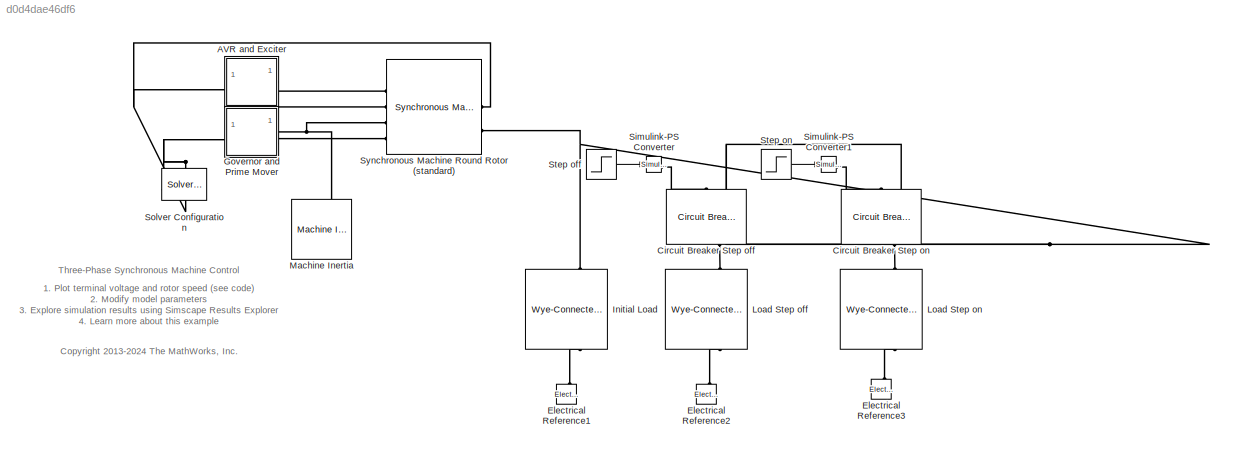
MODEL slx_d0d4dae46df6
KIND model
CONFIG AbsTol = auto
CONFIG EnableMultiTasking = on
CONFIG FixedStep = auto
CONFIG MaxStep = 1e-3
CONFIG MinStep = auto
CONFIG RelTol = 1e-3
CONFIG SampleTimeConstraint = Unconstrained
CONFIG SolverName = ode23t
CONFIG StartTime = 0.0
CONFIG StopFcn = ee_addSimlogTimeStamp(bdroot)
CONFIG StopTime = 15
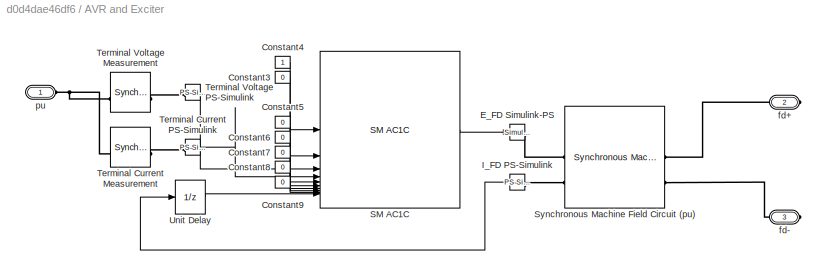
BLOCK [SubSystem] AVR and Exciter
  NameLocation = top
BLOCK [Constant] AVR and Exciter/Constant3
  Value = 0
BLOCK [Constant] AVR and Exciter/Constant4
BLOCK [Constant] AVR and Exciter/Constant5
  Value = 0
BLOCK [Constant] AVR and Exciter/Constant6
  Value = 0
BLOCK [Constant] AVR and Exciter/Constant7
  Value = 0
BLOCK [Constant] AVR and Exciter/Constant8
  Value = 0
BLOCK [Constant] AVR and Exciter/Constant9
  Value = 0
BLOCK [Reference] AVR and Exciter/E_FD Simulink-PS   REF=nesl_utility/Simulink-PS
Converter
  SourceBlock = nesl_utility/Simulink-PS\nConverter
  SourceType = Simulink-PS\nConverter
BLOCK [Reference] AVR and Exciter/I_FD PS-Simulink  REF=nesl_utility/PS-Simulink
Converter
  SourceBlock = nesl_utility/PS-Simulink\nConverter
  SourceType = PS-Simulink\nConverter
BLOCK [Reference] AVR and Exciter/SM AC1C  REF=eeSmAC1C/SM AC1C
  SourceBlock = eeSmAC1C/SM AC1C
  SourceType = SM AC1C
BLOCK [Reference] AVR and Exciter/Synchronous Machine Field Circuit (pu)  REF=ee_lib/Electromechanical/Synchronous/Synchronous Machine
Field Circuit
  SourceBlock = ee_lib/Electromechanical/Synchronous/Synchronous Machine\nField Circuit
  SourceType = Synchronous Machine\nField Circuit
BLOCK [Reference] AVR and Exciter/Terminal Current Measurement  REF=ee_lib/Electromechanical/Synchronous/Synchronous Machine
Measurement
  SourceBlock = ee_lib/Electromechanical/Synchronous/Synchronous Machine\nMeasurement
  SourceType = Synchronous Machine\nMeasurement
BLOCK [Reference] AVR and Exciter/Terminal Current PS-Simulink  REF=nesl_utility/PS-Simulink
Converter
  SourceBlock = nesl_utility/PS-Simulink\nConverter
  SourceType = PS-Simulink\nConverter
BLOCK [Reference] AVR and Exciter/Terminal Voltage Measurement  REF=ee_lib/Electromechanical/Synchronous/Synchronous Machine
Measurement
  SourceBlock = ee_lib/Electromechanical/Synchronous/Synchronous Machine\nMeasurement
  SourceType = Synchronous Machine\nMeasurement
BLOCK [Reference] AVR and Exciter/Terminal Voltage PS-Simulink  REF=nesl_utility/PS-Simulink
Converter
  SourceBlock = nesl_utility/PS-Simulink\nConverter
  SourceType = PS-Simulink\nConverter
BLOCK [UnitDelay] AVR and Exciter/Unit Delay
  HasFrameUpgradeWarning = on
  InitialCondition = 1.32943
  SampleTime = -1
BLOCK [PMIOPort] AVR and Exciter/fd+
  Port = 2
  Side = Right
BLOCK [PMIOPort] AVR and Exciter/fd-
  Port = 3
  Side = Right
BLOCK [PMIOPort] AVR and Exciter/pu
  Side = Left
BLOCK [Reference] Circuit Breaker Step off  REF=ee_lib/Switches & Breakers/Circuit Breaker
(Three-Phase)
  NameLocation = left
  SourceBlock = ee_lib/Switches & Breakers/Circuit Breaker\n(Three-Phase)
  SourceType = Circuit Breaker\n(Three-Phase)
BLOCK [Reference] Circuit Breaker Step on  REF=ee_lib/Switches & Breakers/Circuit Breaker
(Three-Phase)
  NameLocation = left
  SourceBlock = ee_lib/Switches & Breakers/Circuit Breaker\n(Three-Phase)
  SourceType = Circuit Breaker\n(Three-Phase)
BLOCK [Reference] Electrical Reference1  REF=fl_lib/Electrical/Electrical Elements/Electrical Reference
  NameLocation = right
  SourceBlock = fl_lib/Electrical/Electrical Elements/Electrical Reference
  SourceType = Electrical Reference
BLOCK [Reference] Electrical Reference2  REF=fl_lib/Electrical/Electrical Elements/Electrical Reference
  NameLocation = right
  SourceBlock = fl_lib/Electrical/Electrical Elements/Electrical Reference
  SourceType = Electrical Reference
BLOCK [Reference] Electrical Reference3  REF=fl_lib/Electrical/Electrical Elements/Electrical Reference
  NameLocation = right
  SourceBlock = fl_lib/Electrical/Electrical Elements/Electrical Reference
  SourceType = Electrical Reference
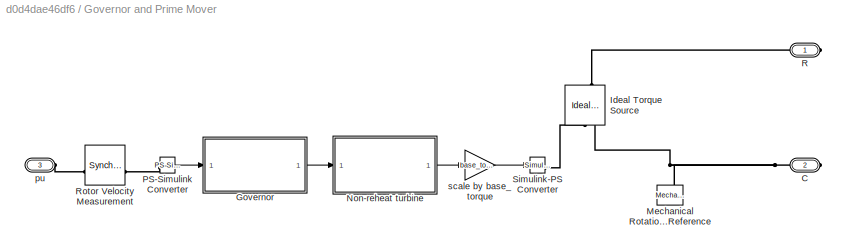
BLOCK [SubSystem] Governor and Prime Mover 
BLOCK [PMIOPort] Governor and Prime Mover /C
  Port = 2
  Side = Right
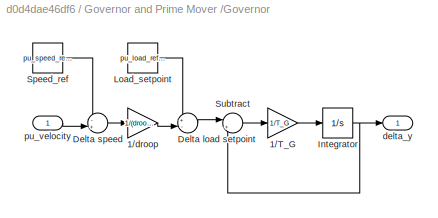
BLOCK [SubSystem] Governor and Prime Mover /Governor
BLOCK [Gain] Governor and Prime Mover /Governor/1//T_G
  Gain = 1/T_G
BLOCK [Gain] Governor and Prime Mover /Governor/1//droop
  Gain = 1/(droop_percentage/100)
BLOCK [Sum] Governor and Prime Mover /Governor/Delta load setpoint
  Inputs = +-|
BLOCK [Sum] Governor and Prime Mover /Governor/Delta speed
  Inputs = -+|
BLOCK [Integrator] Governor and Prime Mover /Governor/Integrator
  InitialCondition = pu_torque0
BLOCK [Constant] Governor and Prime Mover /Governor/Load_setpoint
  Value = pu_load_reference_setpoint
BLOCK [Constant] Governor and Prime Mover /Governor/Speed_ref
  Value = pu_speed_reference
BLOCK [Sum] Governor and Prime Mover /Governor/Subtract
  Inputs = |+-
BLOCK [Outport] Governor and Prime Mover /Governor/delta_y
  VectorParamsAs1DForOutWhenUnconnected = off
BLOCK [Inport] Governor and Prime Mover /Governor/pu_velocity
BLOCK [Reference] Governor and Prime Mover /Ideal Torque Source  REF=fl_lib/Mechanical/Mechanical Sources/Ideal Torque Source
  NameLocation = left
  SourceBlock = fl_lib/Mechanical/Mechanical Sources/Ideal Torque Source
  SourceType = Ideal Torque Source
BLOCK [Reference] Governor and Prime Mover /Mechanical Rotational Reference  REF=fl_lib/Mechanical/Rotational Elements/Mechanical
Rotational Reference
  NameLocation = right
  SourceBlock = fl_lib/Mechanical/Rotational Elements/Mechanical\nRotational Reference
  SourceType = Mechanical\nRotational Reference
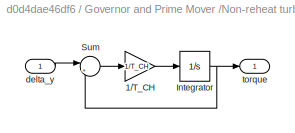
BLOCK [SubSystem] Governor and Prime Mover /Non-reheat turbine
BLOCK [Gain] Governor and Prime Mover /Non-reheat turbine/1//T_CH
  Gain = 1/T_CH
BLOCK [Integrator] Governor and Prime Mover /Non-reheat turbine/Integrator
  InitialCondition = pu_torque0
BLOCK [Sum] Governor and Prime Mover /Non-reheat turbine/Sum
  Inputs = |+-
BLOCK [Inport] Governor and Prime Mover /Non-reheat turbine/delta_y
BLOCK [Outport] Governor and Prime Mover /Non-reheat turbine/torque
  VectorParamsAs1DForOutWhenUnconnected = off
BLOCK [Reference] Governor and Prime Mover /PS-Simulink Converter  REF=nesl_utility/PS-Simulink
Converter
  SourceBlock = nesl_utility/PS-Simulink\nConverter
  SourceType = PS-Simulink\nConverter
BLOCK [PMIOPort] Governor and Prime Mover /R
  Side = Right
BLOCK [Reference] Governor and Prime Mover /Rotor Velocity Measurement  REF=ee_lib/Electromechanical/Synchronous/Synchronous Machine
Measurement
  SourceBlock = ee_lib/Electromechanical/Synchronous/Synchronous Machine\nMeasurement
  SourceType = Synchronous Machine\nMeasurement
BLOCK [Reference] Governor and Prime Mover /Simulink-PS Converter  REF=nesl_utility/Simulink-PS
Converter
  SourceBlock = nesl_utility/Simulink-PS\nConverter
  SourceType = Simulink-PS\nConverter
BLOCK [PMIOPort] Governor and Prime Mover /pu
  Port = 3
  Side = Left
BLOCK [Gain] Governor and Prime Mover /scale by base_torque
  Gain = base_torque
BLOCK [Reference] Initial Load  REF=ee_lib/Passive/RLC Assemblies/Wye-Connected Load
  NameLocation = left
  SourceBlock = ee_lib/Passive/RLC Assemblies/Wye-Connected Load
  SourceType = Wye-Connected Load
BLOCK [Reference] Load Step off  REF=ee_lib/Passive/RLC Assemblies/Wye-Connected Load
  NameLocation = left
  SourceBlock = ee_lib/Passive/RLC Assemblies/Wye-Connected Load
  SourceType = Wye-Connected Load
BLOCK [Reference] Load Step on  REF=ee_lib/Passive/RLC Assemblies/Wye-Connected Load
  NameLocation = left
  SourceBlock = ee_lib/Passive/RLC Assemblies/Wye-Connected Load
  SourceType = Wye-Connected Load
BLOCK [Reference] Machine Inertia  REF=ee_lib/Electromechanical/Mechanical/Machine
Inertia
  NameLocation = right
  SourceBlock = ee_lib/Electromechanical/Mechanical/Machine\nInertia
  SourceType = Machine\nInertia
BLOCK [Reference] Simulink-PS Converter  REF=nesl_utility/Simulink-PS
Converter
  NameLocation = top
  SourceBlock = nesl_utility/Simulink-PS\nConverter
  SourceType = Simulink-PS\nConverter
BLOCK [Reference] Simulink-PS Converter1  REF=nesl_utility/Simulink-PS
Converter
  NameLocation = top
  SourceBlock = nesl_utility/Simulink-PS\nConverter
  SourceType = Simulink-PS\nConverter
BLOCK [Reference] Solver Configuration  REF=nesl_utility/Solver
Configuration
  NameLocation = top
  SourceBlock = nesl_utility/Solver\nConfiguration
  SourceType = Solver\nConfiguration
BLOCK [Step] Step off
  SampleTime = 0
  Time = 3
BLOCK [Step] Step on
  After = 0
  Before = 1
  SampleTime = 0
  Time = 9
BLOCK [Reference] Synchronous Machine Round Rotor (standard)  REF=ee_lib/Electromechanical/Synchronous/Synchronous Machine
Round Rotor
  SourceBlock = ee_lib/Electromechanical/Synchronous/Synchronous Machine\nRound Rotor
  SourceType = Synchronous Machine\nRound Rotor
ANNOTATION (root): 1. Plot terminal voltage and rotor speed ( see code ) 2. Modify model parameters 3. Explore simulation results using Simscape Results Explorer 4. Learn more about this example
ANNOTATION (root): <copyright redacted>
ANNOTATION (root): Three-Phase Synchronous Machine Control
LINE AVR and Exciter/Constant3:1 -> AVR and Exciter/SM AC1C:2
LINE AVR and Exciter/Constant4:1 -> AVR and Exciter/SM AC1C:1
LINE AVR and Exciter/Constant5:1 -> AVR and Exciter/SM AC1C:5
LINE AVR and Exciter/Constant6:1 -> AVR and Exciter/SM AC1C:6
LINE AVR and Exciter/Constant7:1 -> AVR and Exciter/SM AC1C:7
LINE AVR and Exciter/Constant8:1 -> AVR and Exciter/SM AC1C:8
LINE AVR and Exciter/Constant9:1 -> AVR and Exciter/SM AC1C:9
LINE AVR and Exciter/I_FD PS-Simulink:1 -> AVR and Exciter/Unit Delay:1
LINE AVR and Exciter/SM AC1C:1 -> AVR and Exciter/E_FD Simulink-PS :1
LINE AVR and Exciter/Terminal Current PS-Simulink:1 -> AVR and Exciter/SM AC1C:4
LINE AVR and Exciter/Terminal Voltage PS-Simulink:1 -> AVR and Exciter/SM AC1C:3
LINE AVR and Exciter/Unit Delay:1 -> AVR and Exciter/SM AC1C:10
LINE Governor and Prime Mover /Governor/1//T_G:1 -> Governor and Prime Mover /Governor/Integrator:1
LINE Governor and Prime Mover /Governor/1//droop:1 -> Governor and Prime Mover /Governor/Delta load setpoint:2
LINE Governor and Prime Mover /Governor/Delta load setpoint:1 -> Governor and Prime Mover /Governor/Subtract:1
LINE Governor and Prime Mover /Governor/Delta speed:1 -> Governor and Prime Mover /Governor/1//droop:1
NET Governor and Prime Mover /Governor/Integrator:1 -> Governor and Prime Mover /Governor/Subtract:2, Governor and Prime Mover /Governor/delta_y:1
LINE Governor and Prime Mover /Governor/Load_setpoint:1 -> Governor and Prime Mover /Governor/Delta load setpoint:1
LINE Governor and Prime Mover /Governor/Speed_ref:1 -> Governor and Prime Mover /Governor/Delta speed:1
LINE Governor and Prime Mover /Governor/Subtract:1 -> Governor and Prime Mover /Governor/1//T_G:1
LINE Governor and Prime Mover /Governor/pu_velocity:1 -> Governor and Prime Mover /Governor/Delta speed:2
LINE Governor and Prime Mover /Governor:1 -> Governor and Prime Mover /Non-reheat turbine:1
LINE Governor and Prime Mover /Non-reheat turbine/1//T_CH:1 -> Governor and Prime Mover /Non-reheat turbine/Integrator:1
NET Governor and Prime Mover /Non-reheat turbine/Integrator:1 -> Governor and Prime Mover /Non-reheat turbine/Sum:2, Governor and Prime Mover /Non-reheat turbine/torque:1
LINE Governor and Prime Mover /Non-reheat turbine/Sum:1 -> Governor and Prime Mover /Non-reheat turbine/1//T_CH:1
LINE Governor and Prime Mover /Non-reheat turbine/delta_y:1 -> Governor and Prime Mover /Non-reheat turbine/Sum:1
LINE Governor and Prime Mover /Non-reheat turbine:1 -> Governor and Prime Mover /scale by base_torque:1
LINE Governor and Prime Mover /PS-Simulink Converter:1 -> Governor and Prime Mover /Governor:1
LINE Governor and Prime Mover /scale by base_torque:1 -> Governor and Prime Mover /Simulink-PS Converter:1
LINE Step off:1 -> Simulink-PS Converter:1
LINE Step on:1 -> Simulink-PS Converter1:1
PLINE AVR and Exciter/E_FD Simulink-PS :RConn1 -- AVR and Exciter/Synchronous Machine Field Circuit (pu):LConn1
PLINE AVR and Exciter/I_FD PS-Simulink:LConn1 -- AVR and Exciter/Synchronous Machine Field Circuit (pu):LConn2
PLINE AVR and Exciter/Synchronous Machine Field Circuit (pu):RConn1 -- AVR and Exciter/fd+:RConn1
PLINE AVR and Exciter/Synchronous Machine Field Circuit (pu):RConn2 -- AVR and Exciter/fd-:RConn1
PNET net1: AVR and Exciter/Terminal Current Measurement:LConn1 -- AVR and Exciter/Terminal Voltage Measurement:LConn1 -- AVR and Exciter/pu:RConn1
PLINE AVR and Exciter/Terminal Current Measurement:RConn1 -- AVR and Exciter/Terminal Current PS-Simulink:LConn1
PLINE AVR and Exciter/Terminal Voltage Measurement:RConn1 -- AVR and Exciter/Terminal Voltage PS-Simulink:LConn1
PNET net2: AVR and Exciter:LConn1 -- Governor and Prime Mover :LConn1 -- Solver Configuration:RConn1 -- Synchronous Machine Round Rotor (standard):RConn1
PLINE AVR and Exciter:RConn1 -- Synchronous Machine Round Rotor (standard):LConn1
PLINE AVR and Exciter:RConn2 -- Synchronous Machine Round Rotor (standard):LConn2
PLINE Circuit Breaker Step off:LConn1 -- Simulink-PS Converter:RConn1
PNET net3: Circuit Breaker Step off:LConn2 -- Circuit Breaker Step on:LConn2 -- Initial Load:LConn1 -- Synchronous Machine Round Rotor (standard):RConn2
PLINE Circuit Breaker Step off:RConn1 -- Load Step off:LConn1
PLINE Circuit Breaker Step on:LConn1 -- Simulink-PS Converter1:RConn1
PLINE Circuit Breaker Step on:RConn1 -- Load Step on:LConn1
PLINE Electrical Reference1:LConn1 -- Initial Load:RConn1
PLINE Electrical Reference2:LConn1 -- Load Step off:RConn1
PLINE Electrical Reference3:LConn1 -- Load Step on:RConn1
PNET net4: Governor and Prime Mover /C:RConn1 -- Governor and Prime Mover /Ideal Torque Source:RConn2 -- Governor and Prime Mover /Mechanical Rotational Reference:LConn1
PLINE Governor and Prime Mover /Ideal Torque Source:LConn1 -- Governor and Prime Mover /R:RConn1
PLINE Governor and Prime Mover /Ideal Torque Source:RConn1 -- Governor and Prime Mover /Simulink-PS Converter:RConn1
PLINE Governor and Prime Mover /PS-Simulink Converter:LConn1 -- Governor and Prime Mover /Rotor Velocity Measurement:RConn1
PLINE Governor and Prime Mover /Rotor Velocity Measurement:LConn1 -- Governor and Prime Mover /pu:RConn1
PNET net5: Governor and Prime Mover :RConn1 -- Machine Inertia:LConn1 -- Synchronous Machine Round Rotor (standard):LConn3
PLINE Governor and Prime Mover :RConn2 -- Synchronous Machine Round Rotor (standard):LConn4
note: NET lines group one-source signal fan-out (src -> all destinations, sorted); 1:1 wires keep LINE; PNET lines group multi-terminal physical nets as a canonical sorted terminal list (undirected conserving connections); 2-terminal nets keep the pairwise PLINE form
